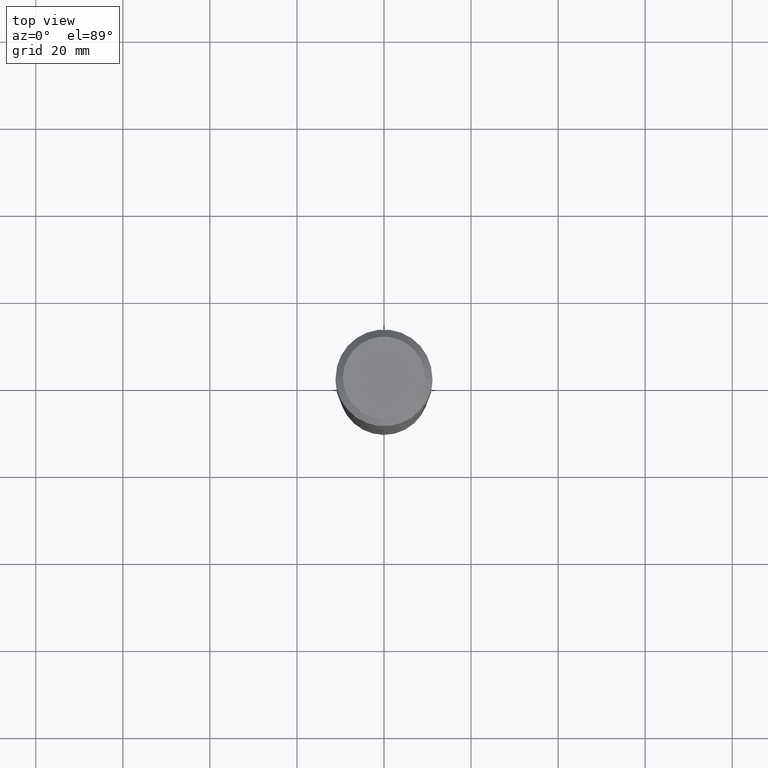
[diagram: clean part render]
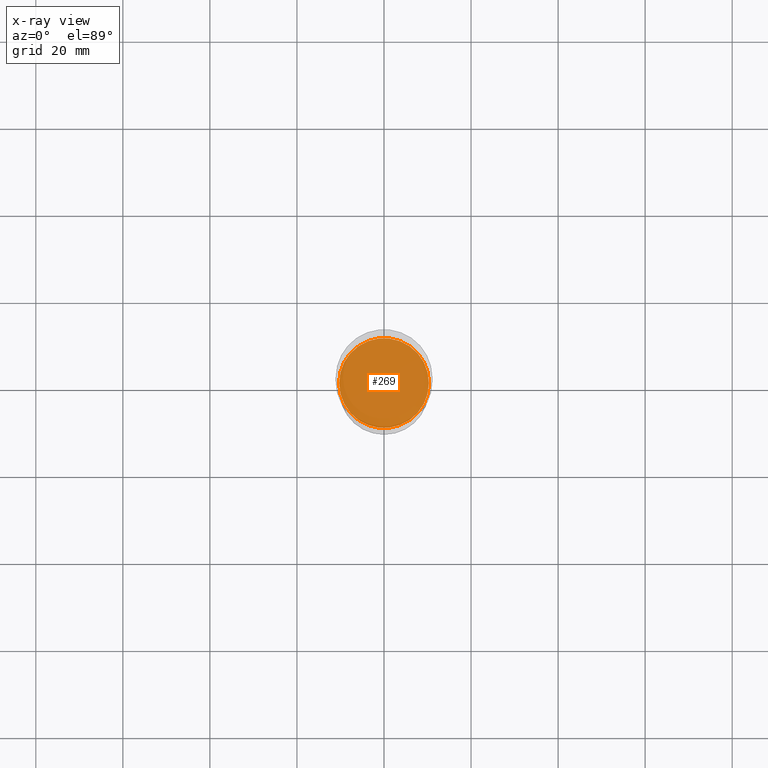
[diagram: x-ray — body ghosted, one internal face saturated and labeled with its STEP entity id]
A machine part, top view, then the same camera in x-ray: the body is ghosted and one INTERNAL B-rep face — a face not visible from any outside direction — is saturated and labeled: STEP entity #269.
In plain terms, the highlighted planar face has unit normal (-0, 0, 1).
Its self-contained STEP definition (entity closure, byte-faithful):
#11 = VERTEX_POINT ( 'NONE', #489 ) ;
#37 = ORIENTED_EDGE ( 'NONE', *, *, #248, .F. ) ;
#41 = EDGE_LOOP ( 'NONE', ( #37, #135 ) ) ;
#48 = AXIS2_PLACEMENT_3D ( 'NONE', #93, #308, #394 ) ;
#60 = PLANE ( 'NONE',  #73 ) ;
#62 = DIRECTION ( 'NONE',  ( 1.000000000000000000, -6.982962677686265922E-15, 4.876176775795935793E-29 ) ) ;
#65 = DIRECTION ( 'NONE',  ( -2.438088387897960049E-29, 3.491481338843145188E-15, 1.000000000000000000 ) ) ;
#73 = AXIS2_PLACEMENT_3D ( 'NONE', #330, #65, #62 ) ;
#93 = CARTESIAN_POINT ( 'NONE',  ( 6.877881017395696678E-29, -9.819791265496348060E-15, -2.812500000000000000 ) ) ;
#100 = AXIS2_PLACEMENT_3D ( 'NONE', #249, #405, #323 ) ;
#135 = ORIENTED_EDGE ( 'NONE', *, *, #241, .F. ) ;
#146 = VERTEX_POINT ( 'NONE', #243 ) ;
#241 = EDGE_CURVE ( 'NONE', #11, #146, #286, .T. ) ;
#243 = CARTESIAN_POINT ( 'NONE',  ( 0.4057500000000000551, -1.265312837196755169E-14, -2.812500000000000000 ) ) ;
#248 = EDGE_CURVE ( 'NONE', #146, #11, #254, .T. ) ;
#249 = CARTESIAN_POINT ( 'NONE',  ( 6.877881017395696678E-29, -9.819791265496348060E-15, -2.812500000000000000 ) ) ;
#254 = CIRCLE ( 'NONE', #100, 0.4057500000000000551 ) ;
#269 = ADVANCED_FACE ( 'NONE', ( #403 ), #60, .F. ) ;
#286 = CIRCLE ( 'NONE', #48, 0.4057500000000000551 ) ;
#308 = DIRECTION ( 'NONE',  ( -2.445468806185136597E-29, 3.491481338843145583E-15, 1.000000000000000000 ) ) ;
#323 = DIRECTION ( 'NONE',  ( 1.000000000000000000, -6.982962677686268288E-15, 0.000000000000000000 ) ) ;
#330 = CARTESIAN_POINT ( 'NONE',  ( 6.877881017395696678E-29, -9.819791265496348060E-15, -2.812500000000000000 ) ) ;
#394 = DIRECTION ( 'NONE',  ( 1.000000000000000000, -6.982962677686268288E-15, 0.000000000000000000 ) ) ;
#403 = FACE_OUTER_BOUND ( 'NONE', #41, .T. ) ;
#405 = DIRECTION ( 'NONE',  ( -2.445468806185136597E-29, 3.491481338843145583E-15, 1.000000000000000000 ) ) ;
#489 = CARTESIAN_POINT ( 'NONE',  ( -0.4057500000000000551, -6.934114887975629964E-15, -2.812500000000000000 ) ) ;